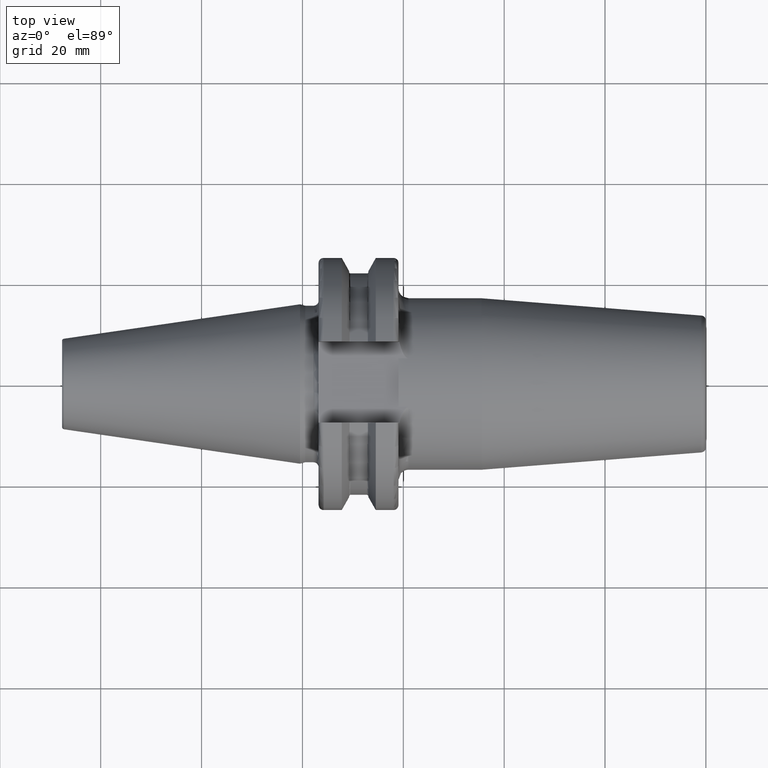
[diagram: clean part render]
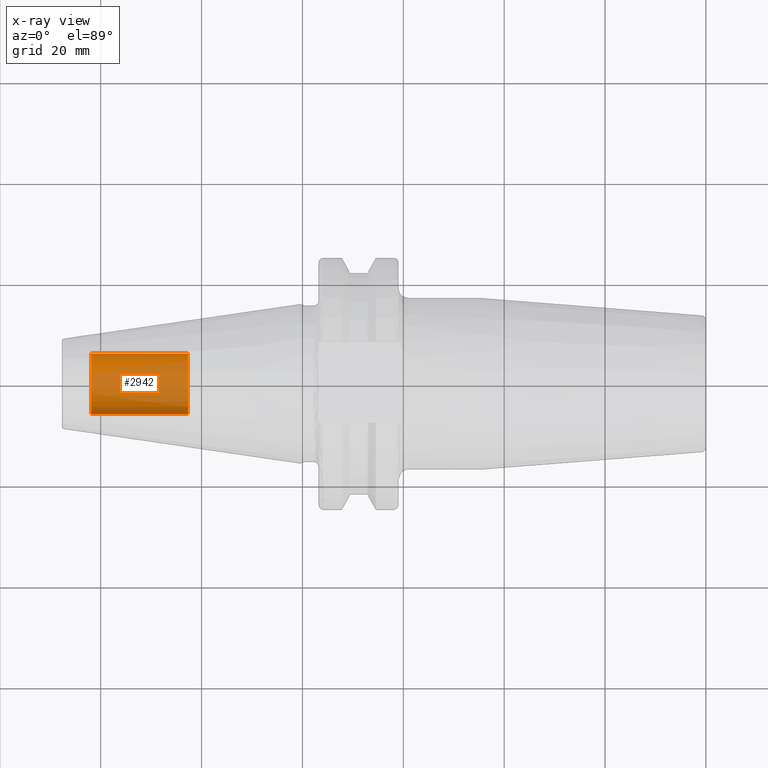
[diagram: x-ray — body ghosted, one internal face saturated and labeled with its STEP entity id]
A machine part, top view, then the same camera in x-ray: the body is ghosted and one INTERNAL B-rep face — a face not visible from any outside direction — is saturated and labeled: STEP entity #2942.
In plain terms, the highlighted cylindrical surface (edge-blend (fillet) strip) has radius 6.0027 mm, axis along (1, 0, 0).
Its self-contained STEP definition (entity closure, byte-faithful):
#2877=CARTESIAN_POINT('',(-4.19E1,0.E0,0.E0));
#2878=DIRECTION('',(-1.E0,0.E0,0.E0));
#2879=DIRECTION('',(0.E0,1.E0,0.E0));
#2880=AXIS2_PLACEMENT_3D('',#2877,#2878,#2879);
#2882=DIRECTION('',(1.E0,0.E0,0.E0));
#2883=VECTOR('',#2882,1.925E1);
#2884=CARTESIAN_POINT('',(-4.19E1,-6.00275E0,0.E0));
#2885=LINE('',#2884,#2883);
#2891=DIRECTION('',(1.E0,0.E0,0.E0));
#2892=VECTOR('',#2891,1.925E1);
#2893=CARTESIAN_POINT('',(-4.19E1,6.00275E0,0.E0));
#2894=LINE('',#2893,#2892);
#2900=CARTESIAN_POINT('',(-2.265E1,0.E0,0.E0));
#2901=DIRECTION('',(1.E0,0.E0,0.E0));
#2902=DIRECTION('',(0.E0,-1.E0,0.E0));
#2903=AXIS2_PLACEMENT_3D('',#2900,#2901,#2902);
#2915=CARTESIAN_POINT('',(-4.19E1,6.00275E0,0.E0));
#2916=CARTESIAN_POINT('',(-4.19E1,-6.00275E0,0.E0));
#2917=VERTEX_POINT('',#2915);
#2918=VERTEX_POINT('',#2916);
#2919=CARTESIAN_POINT('',(-2.265E1,6.00275E0,0.E0));
#2920=CARTESIAN_POINT('',(-2.265E1,-6.00275E0,0.E0));
#2921=VERTEX_POINT('',#2919);
#2922=VERTEX_POINT('',#2920);
#2927=CARTESIAN_POINT('',(-4.19E1,0.E0,0.E0));
#2928=DIRECTION('',(1.E0,0.E0,0.E0));
#2929=DIRECTION('',(0.E0,1.E0,0.E0));
#2930=AXIS2_PLACEMENT_3D('',#2927,#2928,#2929);
#2931=CYLINDRICAL_SURFACE('',#2930,6.00275E0);
#2933=ORIENTED_EDGE('',*,*,#2932,.T.);
#2935=ORIENTED_EDGE('',*,*,#2934,.T.);
#2937=ORIENTED_EDGE('',*,*,#2936,.T.);
#2939=ORIENTED_EDGE('',*,*,#2938,.F.);
#2940=EDGE_LOOP('',(#2933,#2935,#2937,#2939));
#2941=FACE_OUTER_BOUND('',#2940,.F.);
#2942=ADVANCED_FACE('',(#2941),#2931,.T.);
#2881=CIRCLE('',#2880,6.00275E0);
#2904=CIRCLE('',#2903,6.00275E0);
#2932=EDGE_CURVE('',#2917,#2918,#2881,.T.);
#2934=EDGE_CURVE('',#2918,#2922,#2885,.T.);
#2936=EDGE_CURVE('',#2922,#2921,#2904,.T.);
#2938=EDGE_CURVE('',#2917,#2921,#2894,.T.);